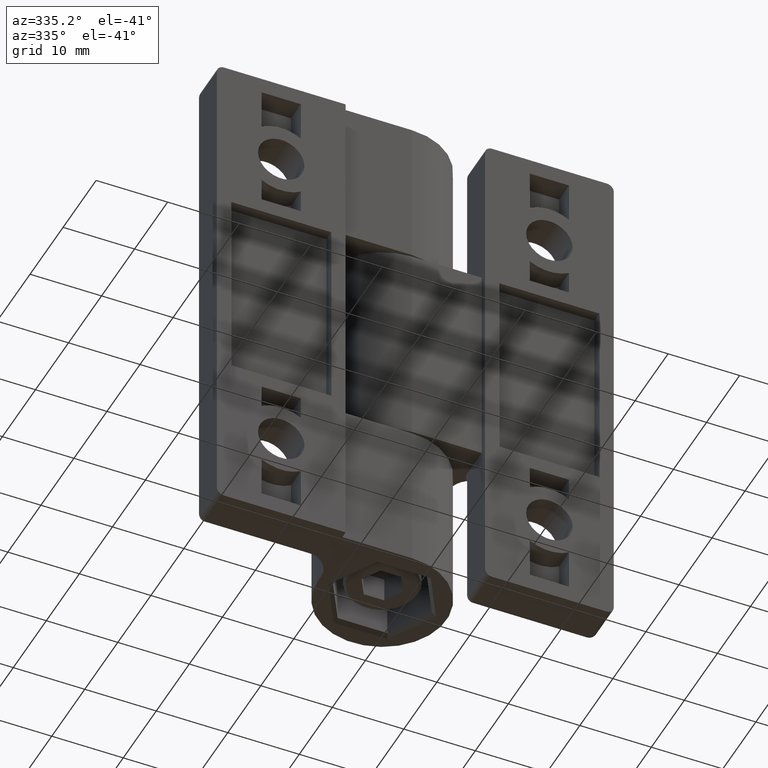
[diagram: clean part render]
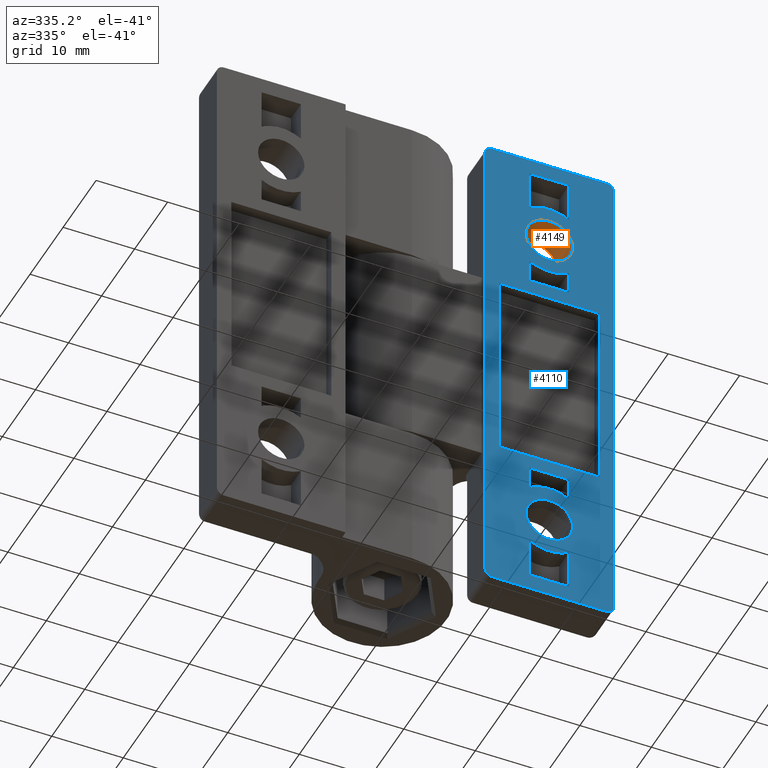
[diagram: same view with the hole feature highlighted: cylindrical wall and planar end face, labeled with their STEP entity ids]
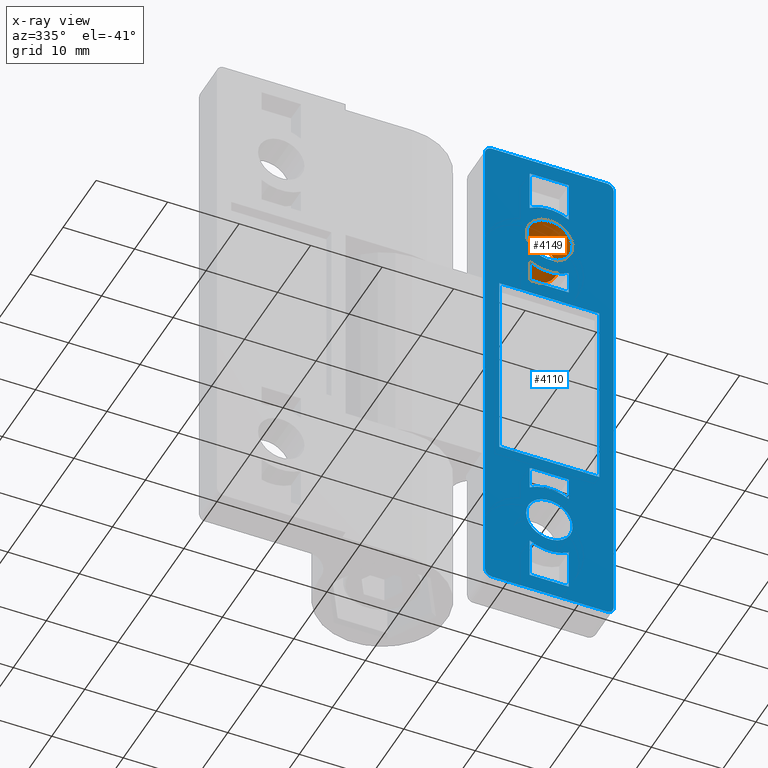
[diagram: x-ray of the same camera — body ghosted, the hole faces saturated]
A machine part, auxiliary view. The highlighted faces form one hole feature of diameter 6.5 mm: the cylindrical wall (entity #4149, orange) and its adjacent planar end face (entity #4110, blue) — they share a circular edge in the B-rep.
The next image is the same camera in x-ray (body ghosted, the hole faces saturated) — the bore reads through the body.
Wall:
#167=FACE_BOUND('',#935,.T.);
#715=FACE_OUTER_BOUND('',#934,.T.);
#934=EDGE_LOOP('',(#3921));
#935=EDGE_LOOP('',(#3922));
#1551=CIRCLE('',#4369,3.25);
#1570=CIRCLE('',#4426,3.25);
#1998=VERTEX_POINT('',#37273);
#2055=VERTEX_POINT('',#37464);
#2593=EDGE_CURVE('',#1998,#1998,#1551,.T.);
#2679=EDGE_CURVE('',#2055,#2055,#1570,.T.);
#3921=ORIENTED_EDGE('',*,*,#2593,.F.);
#3922=ORIENTED_EDGE('',*,*,#2679,.F.);
#3973=CYLINDRICAL_SURFACE('',#4427,3.25);
#4149=ADVANCED_FACE('',(#715,#167),#3973,.F.);
#4369=AXIS2_PLACEMENT_3D('',#37274,#5061,#5062);
#4426=AXIS2_PLACEMENT_3D('',#37465,#5240,#5241);
#4427=AXIS2_PLACEMENT_3D('',#37466,#5242,#5243);
#5061=DIRECTION('center_axis',(6.84775091337684E-33,0.,1.));
#5062=DIRECTION('ref_axis',(1.,0.,-6.84775091337684E-33));
#5240=DIRECTION('center_axis',(0.,0.,-1.));
#5241=DIRECTION('ref_axis',(1.,0.,0.));
#5242=DIRECTION('center_axis',(0.,0.,-1.));
#5243=DIRECTION('ref_axis',(1.,0.,0.));
#37273=CARTESIAN_POINT('',(57.0266159227696,23.5,0.));
#37274=CARTESIAN_POINT('Origin',(60.2766159227696,23.5,0.));
#37464=CARTESIAN_POINT('',(57.0266159227696,23.5,4.7));
#37465=CARTESIAN_POINT('Origin',(60.2766159227696,23.5,4.7));
#37466=CARTESIAN_POINT('Origin',(60.2766159227696,23.5,-0.8));
End face:
#153=FACE_BOUND('',#882,.T.);
#154=FACE_BOUND('',#883,.T.);
#155=FACE_BOUND('',#884,.T.);
#156=FACE_BOUND('',#885,.T.);
#157=FACE_BOUND('',#886,.T.);
#158=FACE_BOUND('',#887,.T.);
#159=FACE_BOUND('',#888,.T.);
#512=PLANE('',#4367);
#676=FACE_OUTER_BOUND('',#881,.T.);
#881=EDGE_LOOP('',(#3725,#3726,#3727,#3728,#3729,#3730,#3731,#3732));
#882=EDGE_LOOP('',(#3733));
#883=EDGE_LOOP('',(#3734));
#884=EDGE_LOOP('',(#3735,#3736,#3737,#3738));
#885=EDGE_LOOP('',(#3739,#3740,#3741,#3742));
#886=EDGE_LOOP('',(#3743,#3744,#3745,#3746));
#887=EDGE_LOOP('',(#3747,#3748,#3749,#3750));
#888=EDGE_LOOP('',(#3751,#3752,#3753,#3754));
#1138=LINE('',#37264,#1403);
#1139=LINE('',#37266,#1404);
#1140=LINE('',#37268,#1405);
#1141=LINE('',#37270,#1406);
#1142=LINE('',#37277,#1407);
#1143=LINE('',#37279,#1408);
#1144=LINE('',#37281,#1409);
#1145=LINE('',#37282,#1410);
#1146=LINE('',#37285,#1411);
#1147=LINE('',#37287,#1412);
#1148=LINE('',#37289,#1413);
#1149=LINE('',#37293,#1414);
#1150=LINE('',#37297,#1415);
#1151=LINE('',#37298,#1416);
#1152=LINE('',#37301,#1417);
#1153=LINE('',#37305,#1418);
#1154=LINE('',#37306,#1419);
#1155=LINE('',#37309,#1420);
#1156=LINE('',#37311,#1421);
#1157=LINE('',#37313,#1422);
#1403=VECTOR('',#5049,16.);
#1404=VECTOR('',#5052,70.);
#1405=VECTOR('',#5055,16.);
#1406=VECTOR('',#5058,70.);
#1407=VECTOR('',#5063,27.5);
#1408=VECTOR('',#5064,14.);
#1409=VECTOR('',#5065,27.5);
#1410=VECTOR('',#5066,14.);
#1411=VECTOR('',#5067,3.2778640450004);
#1412=VECTOR('',#5068,5.5);
#1413=VECTOR('',#5069,3.2778640450004);
#1414=VECTOR('',#5072,5.7778640450004);
#1415=VECTOR('',#5075,5.7778640450004);
#1416=VECTOR('',#5076,5.5);
#1417=VECTOR('',#5077,3.2778640450004);
#1418=VECTOR('',#5080,3.2778640450004);
#1419=VECTOR('',#5081,5.5);
#1420=VECTOR('',#5082,5.7778640450004);
#1421=VECTOR('',#5083,5.5);
#1422=VECTOR('',#5084,5.7778640450004);
#1531=CIRCLE('',#4332,1.);
#1535=CIRCLE('',#4338,1.);
#1545=CIRCLE('',#4354,1.);
#1546=CIRCLE('',#4358,1.);
#1550=CIRCLE('',#4368,3.25);
#1551=CIRCLE('',#4369,3.25);
#1552=CIRCLE('',#4370,5.25);
#1553=CIRCLE('',#4371,5.25);
#1554=CIRCLE('',#4372,5.25);
#1555=CIRCLE('',#4373,5.25);
#1970=VERTEX_POINT('',#37162);
#1971=VERTEX_POINT('',#37163);
#1975=VERTEX_POINT('',#37175);
#1976=VERTEX_POINT('',#37176);
#1988=VERTEX_POINT('',#37222);
#1989=VERTEX_POINT('',#37223);
#1990=VERTEX_POINT('',#37234);
#1991=VERTEX_POINT('',#37235);
#1997=VERTEX_POINT('',#37271);
#1998=VERTEX_POINT('',#37273);
#1999=VERTEX_POINT('',#37275);
#2000=VERTEX_POINT('',#37276);
#2001=VERTEX_POINT('',#37278);
#2002=VERTEX_POINT('',#37280);
#2003=VERTEX_POINT('',#37283);
#2004=VERTEX_POINT('',#37284);
#2005=VERTEX_POINT('',#37286);
#2006=VERTEX_POINT('',#37288);
#2007=VERTEX_POINT('',#37291);
#2008=VERTEX_POINT('',#37292);
#2009=VERTEX_POINT('',#37294);
#2010=VERTEX_POINT('',#37296);
#2011=VERTEX_POINT('',#37299);
#2012=VERTEX_POINT('',#37300);
#2013=VERTEX_POINT('',#37302);
#2014=VERTEX_POINT('',#37304);
#2015=VERTEX_POINT('',#37307);
#2016=VERTEX_POINT('',#37308);
#2017=VERTEX_POINT('',#37310);
#2018=VERTEX_POINT('',#37312);
#2547=EDGE_CURVE('',#1970,#1971,#1531,.T.);
#2553=EDGE_CURVE('',#1975,#1976,#1535,.T.);
#2571=EDGE_CURVE('',#1988,#1989,#1545,.T.);
#2578=EDGE_CURVE('',#1990,#1991,#1546,.T.);
#2588=EDGE_CURVE('',#1989,#1975,#1138,.T.);
#2589=EDGE_CURVE('',#1988,#1991,#1139,.T.);
#2590=EDGE_CURVE('',#1971,#1990,#1140,.T.);
#2591=EDGE_CURVE('',#1976,#1970,#1141,.T.);
#2592=EDGE_CURVE('',#1997,#1997,#1550,.T.);
#2593=EDGE_CURVE('',#1998,#1998,#1551,.T.);
#2594=EDGE_CURVE('',#1999,#2000,#1142,.T.);
#2595=EDGE_CURVE('',#2000,#2001,#1143,.T.);
#2596=EDGE_CURVE('',#2001,#2002,#1144,.T.);
#2597=EDGE_CURVE('',#2002,#1999,#1145,.T.);
#2598=EDGE_CURVE('',#2003,#2004,#1146,.T.);
#2599=EDGE_CURVE('',#2004,#2005,#1147,.T.);
#2600=EDGE_CURVE('',#2005,#2006,#1148,.T.);
#2601=EDGE_CURVE('',#2006,#2003,#1552,.T.);
#2602=EDGE_CURVE('',#2007,#2008,#1149,.T.);
#2603=EDGE_CURVE('',#2008,#2009,#1553,.T.);
#2604=EDGE_CURVE('',#2009,#2010,#1150,.T.);
#2605=EDGE_CURVE('',#2010,#2007,#1151,.T.);
#2606=EDGE_CURVE('',#2011,#2012,#1152,.T.);
#2607=EDGE_CURVE('',#2012,#2013,#1554,.T.);
#2608=EDGE_CURVE('',#2013,#2014,#1153,.T.);
#2609=EDGE_CURVE('',#2014,#2011,#1154,.T.);
#2610=EDGE_CURVE('',#2015,#2016,#1155,.T.);
#2611=EDGE_CURVE('',#2016,#2017,#1156,.T.);
#2612=EDGE_CURVE('',#2017,#2018,#1157,.T.);
#2613=EDGE_CURVE('',#2018,#2015,#1555,.T.);
#3725=ORIENTED_EDGE('',*,*,#2553,.F.);
#3726=ORIENTED_EDGE('',*,*,#2588,.F.);
#3727=ORIENTED_EDGE('',*,*,#2571,.F.);
#3728=ORIENTED_EDGE('',*,*,#2589,.T.);
#3729=ORIENTED_EDGE('',*,*,#2578,.F.);
#3730=ORIENTED_EDGE('',*,*,#2590,.F.);
#3731=ORIENTED_EDGE('',*,*,#2547,.F.);
#3732=ORIENTED_EDGE('',*,*,#2591,.F.);
#3733=ORIENTED_EDGE('',*,*,#2592,.T.);
#3734=ORIENTED_EDGE('',*,*,#2593,.T.);
#3735=ORIENTED_EDGE('',*,*,#2594,.T.);
#3736=ORIENTED_EDGE('',*,*,#2595,.T.);
#3737=ORIENTED_EDGE('',*,*,#2596,.T.);
#3738=ORIENTED_EDGE('',*,*,#2597,.T.);
#3739=ORIENTED_EDGE('',*,*,#2598,.T.);
#3740=ORIENTED_EDGE('',*,*,#2599,.T.);
#3741=ORIENTED_EDGE('',*,*,#2600,.T.);
#3742=ORIENTED_EDGE('',*,*,#2601,.T.);
#3743=ORIENTED_EDGE('',*,*,#2602,.T.);
#3744=ORIENTED_EDGE('',*,*,#2603,.T.);
#3745=ORIENTED_EDGE('',*,*,#2604,.T.);
#3746=ORIENTED_EDGE('',*,*,#2605,.T.);
#3747=ORIENTED_EDGE('',*,*,#2606,.T.);
#3748=ORIENTED_EDGE('',*,*,#2607,.T.);
#3749=ORIENTED_EDGE('',*,*,#2608,.T.);
#3750=ORIENTED_EDGE('',*,*,#2609,.T.);
#3751=ORIENTED_EDGE('',*,*,#2610,.T.);
#3752=ORIENTED_EDGE('',*,*,#2611,.T.);
#3753=ORIENTED_EDGE('',*,*,#2612,.T.);
#3754=ORIENTED_EDGE('',*,*,#2613,.T.);
#4110=ADVANCED_FACE('',(#676,#153,#154,#155,#156,#157,#158,#159),#512,.T.);
#4332=AXIS2_PLACEMENT_3D('',#37164,#4965,#4966);
#4338=AXIS2_PLACEMENT_3D('',#37177,#4979,#4980);
#4354=AXIS2_PLACEMENT_3D('',#37224,#5017,#5018);
#4358=AXIS2_PLACEMENT_3D('',#37236,#5031,#5032);
#4367=AXIS2_PLACEMENT_3D('',#37269,#5056,#5057);
#4368=AXIS2_PLACEMENT_3D('',#37272,#5059,#5060);
#4369=AXIS2_PLACEMENT_3D('',#37274,#5061,#5062);
#4370=AXIS2_PLACEMENT_3D('',#37290,#5070,#5071);
#4371=AXIS2_PLACEMENT_3D('',#37295,#5073,#5074);
#4372=AXIS2_PLACEMENT_3D('',#37303,#5078,#5079);
#4373=AXIS2_PLACEMENT_3D('',#37314,#5085,#5086);
#4965=DIRECTION('center_axis',(6.84775091337684E-33,0.,1.));
#4966=DIRECTION('ref_axis',(0.707106781186548,0.707106781186548,-4.84209110672514E-33));
#4979=DIRECTION('center_axis',(6.84775091337684E-33,0.,1.));
#4980=DIRECTION('ref_axis',(0.707106781186541,-0.707106781186554,-4.84209110672509E-33));
#5017=DIRECTION('center_axis',(6.84775091337684E-33,0.,1.));
#5018=DIRECTION('ref_axis',(-0.707106781186548,-0.707106781186548,4.84209110672514E-33));
#5031=DIRECTION('center_axis',(6.84775091337684E-33,0.,1.));
#5032=DIRECTION('ref_axis',(-0.707106781186548,0.707106781186548,4.84209110672514E-33));
#5049=DIRECTION('',(1.,0.,-6.84775091337684E-33));
#5052=DIRECTION('',(0.,1.,0.));
#5055=DIRECTION('',(-1.,0.,6.84775091337684E-33));
#5056=DIRECTION('center_axis',(-6.84775091337684E-33,0.,-1.));
#5057=DIRECTION('ref_axis',(-1.,0.,6.84775091337684E-33));
#5058=DIRECTION('',(0.,1.,0.));
#5059=DIRECTION('center_axis',(6.84775091337684E-33,0.,1.));
#5060=DIRECTION('ref_axis',(1.,0.,-6.84775091337684E-33));
#5061=DIRECTION('center_axis',(6.84775091337684E-33,0.,1.));
#5062=DIRECTION('ref_axis',(1.,0.,-6.84775091337684E-33));
#5063=DIRECTION('',(0.,1.,0.));
#5064=DIRECTION('',(-1.,0.,6.84775091337684E-33));
#5065=DIRECTION('',(0.,-1.,0.));
#5066=DIRECTION('',(1.,0.,-6.84775091337684E-33));
#5067=DIRECTION('',(0.,1.,0.));
#5068=DIRECTION('',(-1.,0.,6.84775091337684E-33));
#5069=DIRECTION('',(0.,-1.,0.));
#5070=DIRECTION('center_axis',(-6.84775091337684E-33,0.,-1.));
#5071=DIRECTION('ref_axis',(1.,0.,-6.84775091337684E-33));
#5072=DIRECTION('',(0.,1.,0.));
#5073=DIRECTION('center_axis',(-6.84775091337684E-33,0.,-1.));
#5074=DIRECTION('ref_axis',(1.,0.,-6.84775091337684E-33));
#5075=DIRECTION('',(0.,-1.,0.));
#5076=DIRECTION('',(1.,0.,-6.84775091337684E-33));
#5077=DIRECTION('',(0.,1.,0.));
#5078=DIRECTION('center_axis',(-6.84775091337684E-33,0.,-1.));
#5079=DIRECTION('ref_axis',(1.,0.,-6.84775091337684E-33));
#5080=DIRECTION('',(0.,-1.,0.));
#5081=DIRECTION('',(1.,0.,-6.84775091337684E-33));
#5082=DIRECTION('',(0.,1.,0.));
#5083=DIRECTION('',(-1.,0.,6.84775091337684E-33));
#5084=DIRECTION('',(0.,-1.,0.));
#5085=DIRECTION('center_axis',(-6.84775091337684E-33,0.,-1.));
#5086=DIRECTION('ref_axis',(1.,0.,-6.84775091337684E-33));
#37162=CARTESIAN_POINT('',(69.2766159227696,35.,-1.23259516440783E-31));
#37163=CARTESIAN_POINT('',(68.2766159227696,36.,-1.16411765527406E-31));
#37164=CARTESIAN_POINT('Origin',(68.2766159227696,35.,0.));
#37175=CARTESIAN_POINT('',(68.2766159227696,-36.,-1.16411765527406E-31));
#37176=CARTESIAN_POINT('',(69.2766159227696,-35.,-1.23259516440783E-31));
#37177=CARTESIAN_POINT('Origin',(68.2766159227696,-35.,0.));
#37222=CARTESIAN_POINT('',(51.2766159227696,-35.,0.));
#37223=CARTESIAN_POINT('',(52.2766159227696,-36.,-6.84775091337681E-33));
#37224=CARTESIAN_POINT('Origin',(52.2766159227696,-35.,0.));
#37234=CARTESIAN_POINT('',(52.2766159227696,36.,-6.84775091337681E-33));
#37235=CARTESIAN_POINT('',(51.2766159227696,35.,0.));
#37236=CARTESIAN_POINT('Origin',(52.2766159227696,35.,0.));
#37264=CARTESIAN_POINT('',(51.2766159227696,-36.,0.));
#37266=CARTESIAN_POINT('',(51.2766159227696,0.,0.));
#37268=CARTESIAN_POINT('',(51.2766159227696,36.,0.));
#37269=CARTESIAN_POINT('Origin',(69.2766159227696,0.,-1.23259516440783E-31));
#37270=CARTESIAN_POINT('',(69.2766159227696,0.,-1.23259516440783E-31));
#37271=CARTESIAN_POINT('',(57.0266159227696,-23.5,0.));
#37272=CARTESIAN_POINT('Origin',(60.2766159227696,-23.5,0.));
#37273=CARTESIAN_POINT('',(57.0266159227696,23.5,0.));
#37274=CARTESIAN_POINT('Origin',(60.2766159227696,23.5,0.));
#37275=CARTESIAN_POINT('',(67.2766159227696,-13.75,-1.09564014614029E-31));
#37276=CARTESIAN_POINT('',(67.2766159227696,13.75,-1.09564014614029E-31));
#37277=CARTESIAN_POINT('',(67.2766159227696,-6.875,-1.09564014614029E-31));
#37278=CARTESIAN_POINT('',(53.2766159227696,13.75,-1.36955018267537E-32));
#37279=CARTESIAN_POINT('',(68.2766159227696,13.75,-1.16411765527406E-31));
#37280=CARTESIAN_POINT('',(53.2766159227696,-13.75,-1.36955018267537E-32));
#37281=CARTESIAN_POINT('',(53.2766159227696,6.875,-1.36955018267537E-32));
#37282=CARTESIAN_POINT('',(61.2766159227696,-13.75,-6.84775091337684E-32));
#37283=CARTESIAN_POINT('',(63.0266159227696,-19.0278640450004,-8.04610732321779E-32));
#37284=CARTESIAN_POINT('',(63.0266159227696,-15.75,-8.04610732321779E-32));
#37285=CARTESIAN_POINT('',(63.0266159227696,-9.51393202250021,-8.04610732321779E-32));
#37286=CARTESIAN_POINT('',(57.5266159227696,-15.75,-4.27984432086053E-32));
#37287=CARTESIAN_POINT('',(66.1516159227696,-15.75,-1.01860294836481E-31));
#37288=CARTESIAN_POINT('',(57.5266159227696,-19.0278640450004,-4.27984432086053E-32));
#37289=CARTESIAN_POINT('',(57.5266159227696,-7.875,-4.27984432086053E-32));
#37290=CARTESIAN_POINT('Origin',(60.2766159227696,-23.5,-1.23259516440783E-31));
#37291=CARTESIAN_POINT('',(63.0266159227696,-33.75,-8.04610732321779E-32));
#37292=CARTESIAN_POINT('',(63.0266159227696,-27.9721359549996,-8.04610732321779E-32));
#37293=CARTESIAN_POINT('',(63.0266159227696,-16.875,-8.04610732321779E-32));
#37294=CARTESIAN_POINT('',(57.5266159227696,-27.9721359549996,-4.27984432086053E-32));
#37295=CARTESIAN_POINT('Origin',(60.2766159227696,-23.5,-1.23259516440783E-31));
#37296=CARTESIAN_POINT('',(57.5266159227696,-33.75,-4.27984432086053E-32));
#37297=CARTESIAN_POINT('',(57.5266159227696,-13.9860679774998,-4.27984432086053E-32));
#37298=CARTESIAN_POINT('',(63.4016159227696,-33.75,-8.30289798246942E-32));
#37299=CARTESIAN_POINT('',(63.0266159227696,15.75,-8.04610732321779E-32));
#37300=CARTESIAN_POINT('',(63.0266159227696,19.0278640450004,-8.04610732321779E-32));
#37301=CARTESIAN_POINT('',(63.0266159227696,9.51393202250021,-8.04610732321779E-32));
#37302=CARTESIAN_POINT('',(57.5266159227696,19.0278640450004,-4.27984432086053E-32));
#37303=CARTESIAN_POINT('Origin',(60.2766159227696,23.5,-1.23259516440783E-31));
#37304=CARTESIAN_POINT('',(57.5266159227696,15.75,-4.27984432086053E-32));
#37305=CARTESIAN_POINT('',(57.5266159227696,7.875,-4.27984432086053E-32));
#37306=CARTESIAN_POINT('',(66.1516159227696,15.75,-1.01860294836481E-31));
#37307=CARTESIAN_POINT('',(63.0266159227696,27.9721359549996,-8.04610732321779E-32));
#37308=CARTESIAN_POINT('',(63.0266159227696,33.75,-8.04610732321779E-32));
#37309=CARTESIAN_POINT('',(63.0266159227696,16.875,-8.04610732321779E-32));
#37310=CARTESIAN_POINT('',(57.5266159227696,33.75,-4.27984432086053E-32));
#37311=CARTESIAN_POINT('',(63.4016159227696,33.75,-8.30289798246942E-32));
#37312=CARTESIAN_POINT('',(57.5266159227696,27.9721359549996,-4.27984432086053E-32));
#37313=CARTESIAN_POINT('',(57.5266159227696,13.9860679774998,-4.27984432086053E-32));
#37314=CARTESIAN_POINT('Origin',(60.2766159227696,23.5,-1.23259516440783E-31));